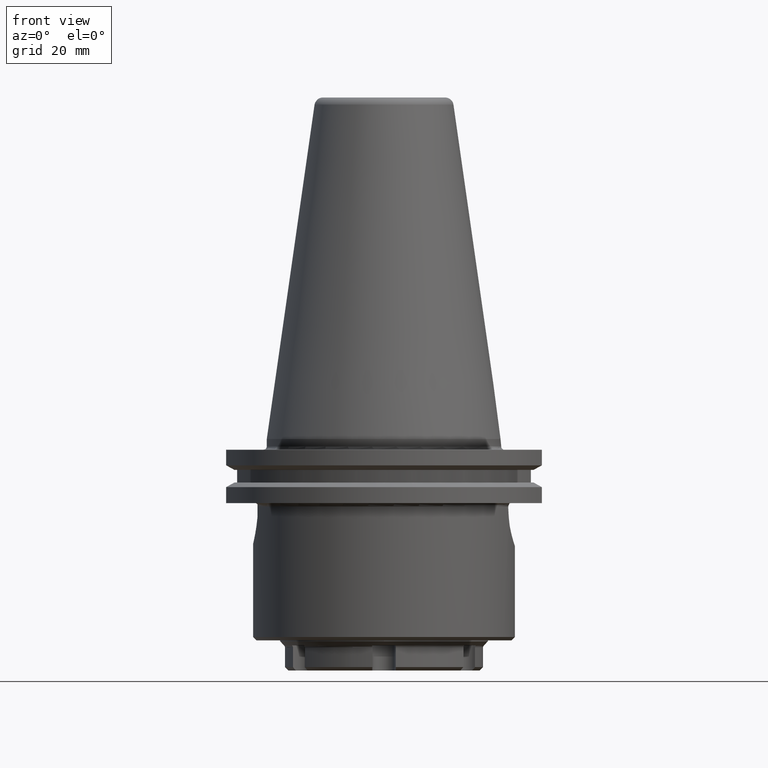
[diagram: clean part render]
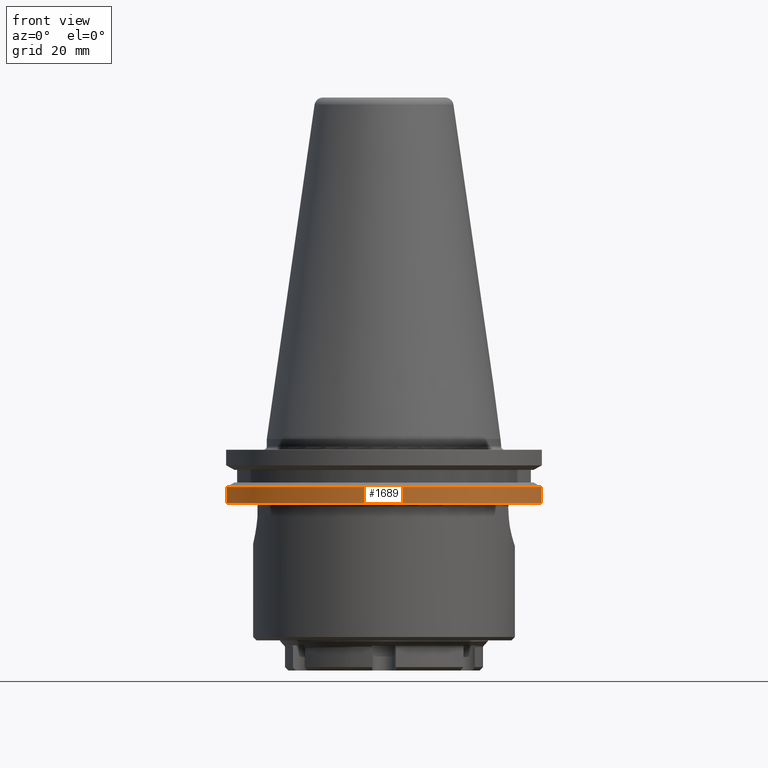
[diagram: same view with one face highlighted and labeled with its STEP entity id]
A machine part, front view. The second image highlights one B-rep face of the part: STEP entity #1689.
In plain terms, the highlighted cylindrical surface (partial cylindrical patch) has radius 48.75 mm, axis along (0, 0, -1).
Its self-contained STEP definition (entity closure, byte-faithful):
#80=LINE('',#2869,#180);
#81=LINE('',#2870,#181);
#180=VECTOR('',#2226,1000.);
#181=VECTOR('',#2227,1000.);
#247=CYLINDRICAL_SURFACE('',#1863,48.75);
#361=CIRCLE('',#1862,48.75);
#362=CIRCLE('',#1864,48.75);
#669=ORIENTED_EDGE('',*,*,#1049,.F.);
#670=ORIENTED_EDGE('',*,*,#1050,.T.);
#671=ORIENTED_EDGE('',*,*,#1046,.T.);
#672=ORIENTED_EDGE('',*,*,#1051,.T.);
#1046=EDGE_CURVE('',#1248,#1249,#361,.T.);
#1049=EDGE_CURVE('',#1250,#1251,#362,.T.);
#1050=EDGE_CURVE('',#1250,#1248,#80,.F.);
#1051=EDGE_CURVE('',#1249,#1251,#81,.T.);
#1248=VERTEX_POINT('',#2855);
#1249=VERTEX_POINT('',#2856);
#1250=VERTEX_POINT('',#2867);
#1251=VERTEX_POINT('',#2868);
#1440=EDGE_LOOP('',(#669,#670,#671,#672));
#1557=FACE_BOUND('',#1440,.T.);
#1689=ADVANCED_FACE('',(#1557),#247,.T.);
#1862=AXIS2_PLACEMENT_3D('',#2854,#2220,#2221);
#1863=AXIS2_PLACEMENT_3D('',#2865,#2222,#2223);
#1864=AXIS2_PLACEMENT_3D('',#2866,#2224,#2225);
#2220=DIRECTION('',(0.,2.22044604925031E-16,-1.));
#2221=DIRECTION('',(-1.,0.,0.));
#2222=DIRECTION('',(0.,2.22044604925031E-16,-1.));
#2223=DIRECTION('',(-1.,0.,0.));
#2224=DIRECTION('',(0.,2.22044604925031E-16,-1.));
#2225=DIRECTION('',(-1.,0.,0.));
#2226=DIRECTION('',(0.,2.22044604925031E-16,-1.));
#2227=DIRECTION('',(0.,2.22044604925031E-16,-1.));
#2854=CARTESIAN_POINT('',(0.,3.18580612206168E-15,-14.3475952641916));
#2855=CARTESIAN_POINT('',(47.025950282796,-12.85,-14.3475952641916));
#2856=CARTESIAN_POINT('',(-47.025950282796,-12.85,-14.3475952641916));
#2865=CARTESIAN_POINT('',(0.,1.33226762955019E-14,-60.));
#2866=CARTESIAN_POINT('',(0.,4.2410519540681E-15,-19.1));
#2867=CARTESIAN_POINT('',(47.025950282796,-12.85,-19.1));
#2868=CARTESIAN_POINT('',(-47.025950282796,-12.85,-19.1));
#2869=CARTESIAN_POINT('',(47.025950282796,-12.85,-60.));
#2870=CARTESIAN_POINT('',(-47.025950282796,-12.85,-60.));